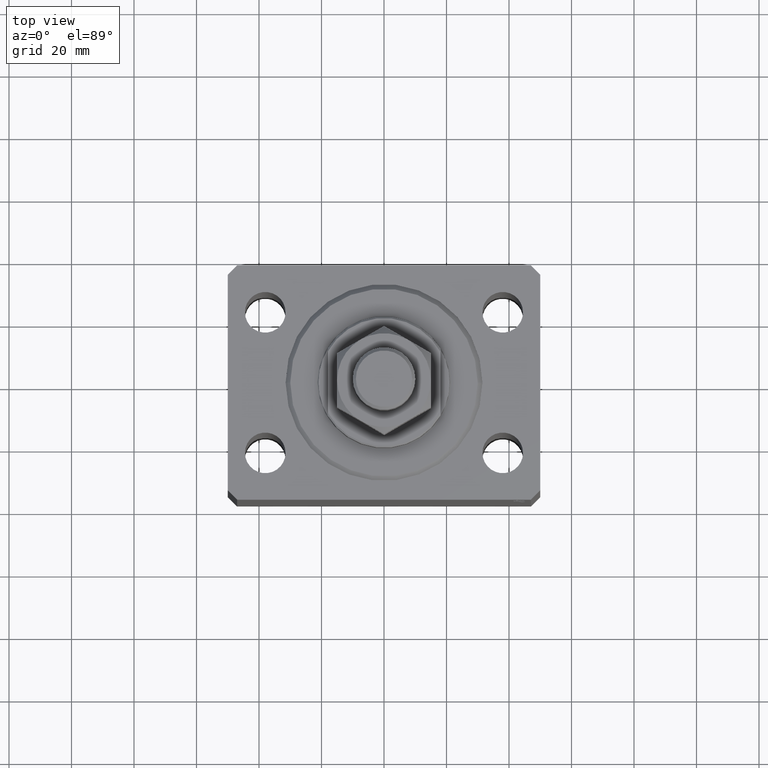
[diagram: clean part render]
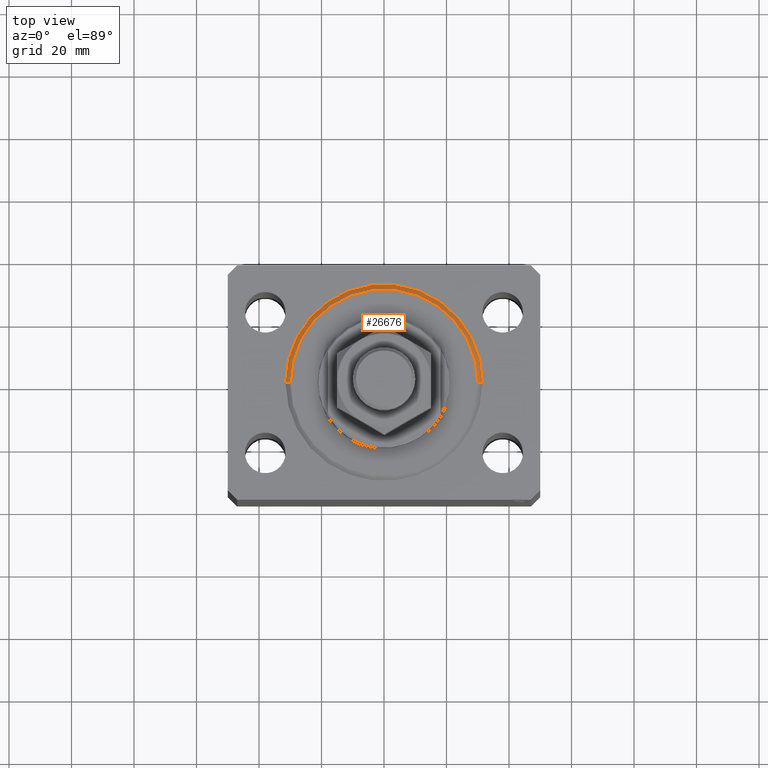
[diagram: same view with one face highlighted and labeled with its STEP entity id]
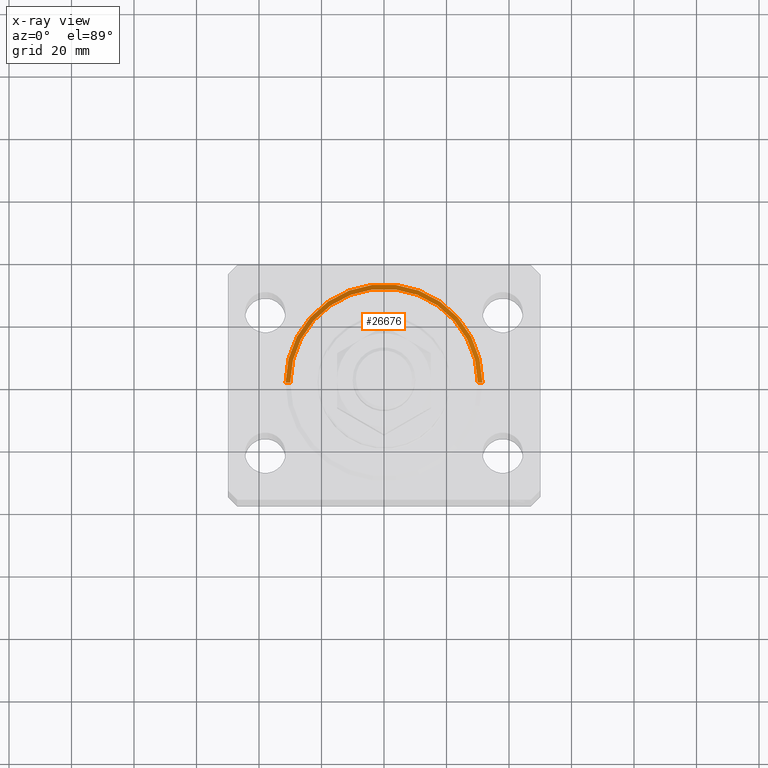
[diagram: x-ray of the same camera — body ghosted, the highlighted face saturated]
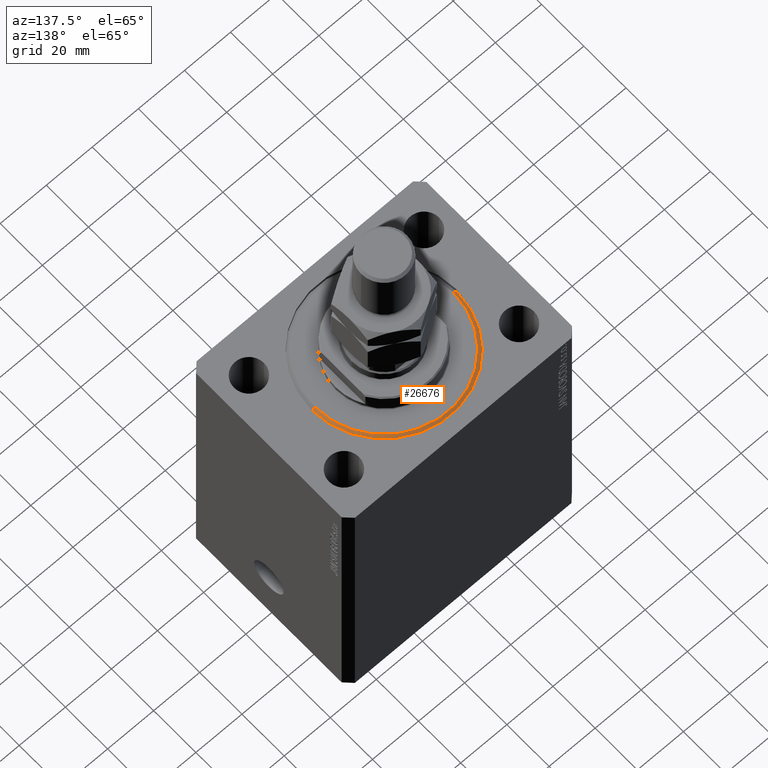
[diagram: same view with one face highlighted and labeled with its STEP entity id]
A machine part, top view. The second image highlights one B-rep face of the part: STEP entity #26676.
The next image is the same camera in x-ray: the body ghosted, the highlighted face saturated — about 0% of this face is hidden behind the body in this view.
A second angle (auxiliary view) of the same face is appended — the face is thin or edge-on in the first view.
In plain terms, the highlighted conical surface has half-angle 45 deg.
Its self-contained STEP definition (entity closure, byte-faithful):
#359 = EDGE_LOOP ( 'NONE', ( #23507, #637, #27657, #17033 ) ) ;
#637 = ORIENTED_EDGE ( 'NONE', *, *, #4502, .T. ) ;
#1096 = AXIS2_PLACEMENT_3D ( 'NONE', #35306, #42104, #20645 ) ;
#2869 = DIRECTION ( 'NONE',  ( 1.000000000000000000, 0.000000000000000000, 0.000000000000000000 ) ) ;
#4502 = EDGE_CURVE ( 'NONE', #18239, #38877, #35389, .T. ) ;
#5205 = VECTOR ( 'NONE', #39626, 1000.000000000000114 ) ;
#9839 = CARTESIAN_POINT ( 'NONE',  ( 30.00000000000002132, 0.000000000000000000, 0.000000000000000000 ) ) ;
#10928 = LINE ( 'NONE', #18189, #5205 ) ;
#11212 = AXIS2_PLACEMENT_3D ( 'NONE', #44925, #13860, #42103 ) ;
#12895 = EDGE_CURVE ( 'NONE', #32269, #38712, #10928, .T. ) ;
#13014 = AXIS2_PLACEMENT_3D ( 'NONE', #17382, #27905, #2869 ) ;
#13353 = EDGE_CURVE ( 'NONE', #18239, #32269, #44040, .T. ) ;
#13860 = DIRECTION ( 'NONE',  ( -0.000000000000000000, -0.000000000000000000, -1.000000000000000000 ) ) ;
#17033 = ORIENTED_EDGE ( 'NONE', *, *, #12895, .F. ) ;
#17382 = CARTESIAN_POINT ( 'NONE',  ( 0.000000000000000000, 0.000000000000000000, 1.499999999999980460 ) ) ;
#18189 = CARTESIAN_POINT ( 'NONE',  ( 31.50000000000000000, 0.000000000000000000, 1.499999999999980460 ) ) ;
#18239 = VERTEX_POINT ( 'NONE', #32786 ) ;
#19302 = VECTOR ( 'NONE', #29136, 1000.000000000000114 ) ;
#20645 = DIRECTION ( 'NONE',  ( 1.000000000000000000, 0.000000000000000000, 0.000000000000000000 ) ) ;
#21232 = CONICAL_SURFACE ( 'NONE', #1096, 31.50000000000000000, 0.7853981633974482790 ) ;
#23430 = CARTESIAN_POINT ( 'NONE',  ( 31.50000000000000000, 3.857637417314162689E-15, 1.499999999999980460 ) ) ;
#23507 = ORIENTED_EDGE ( 'NONE', *, *, #13353, .F. ) ;
#24941 = CARTESIAN_POINT ( 'NONE',  ( -31.50000000000000000, 3.857637417314162689E-15, 1.499999999999980460 ) ) ;
#26659 = EDGE_CURVE ( 'NONE', #38712, #38877, #32411, .T. ) ;
#26676 = ADVANCED_FACE ( 'NONE', ( #38828 ), #21232, .T. ) ;
#27657 = ORIENTED_EDGE ( 'NONE', *, *, #26659, .F. ) ;
#27905 = DIRECTION ( 'NONE',  ( -0.000000000000000000, -0.000000000000000000, 1.000000000000000000 ) ) ;
#29136 = DIRECTION ( 'NONE',  ( -0.7071067811865474617, 8.659560562354932858E-17, 0.7071067811865474617 ) ) ;
#32269 = VERTEX_POINT ( 'NONE', #9839 ) ;
#32411 = CIRCLE ( 'NONE', #13014, 31.50000000000000000 ) ;
#32786 = CARTESIAN_POINT ( 'NONE',  ( -30.00000000000002132, 3.765788907378112117E-15, 0.000000000000000000 ) ) ;
#35306 = CARTESIAN_POINT ( 'NONE',  ( 0.000000000000000000, 0.000000000000000000, 1.499999999999980460 ) ) ;
#35389 = LINE ( 'NONE', #24941, #19302 ) ;
#35493 = CARTESIAN_POINT ( 'NONE',  ( -31.50000000000000000, 0.000000000000000000, 1.499999999999980460 ) ) ;
#38712 = VERTEX_POINT ( 'NONE', #23430 ) ;
#38828 = FACE_OUTER_BOUND ( 'NONE', #359, .T. ) ;
#38877 = VERTEX_POINT ( 'NONE', #35493 ) ;
#39626 = DIRECTION ( 'NONE',  ( 0.7071067811865474617, 0.000000000000000000, 0.7071067811865474617 ) ) ;
#42103 = DIRECTION ( 'NONE',  ( 1.000000000000000000, 0.000000000000000000, 0.000000000000000000 ) ) ;
#42104 = DIRECTION ( 'NONE',  ( -0.000000000000000000, -0.000000000000000000, 1.000000000000000000 ) ) ;
#44040 = CIRCLE ( 'NONE', #11212, 30.00000000000002132 ) ;
#44925 = CARTESIAN_POINT ( 'NONE',  ( 0.000000000000000000, 0.000000000000000000, 0.000000000000000000 ) ) ;